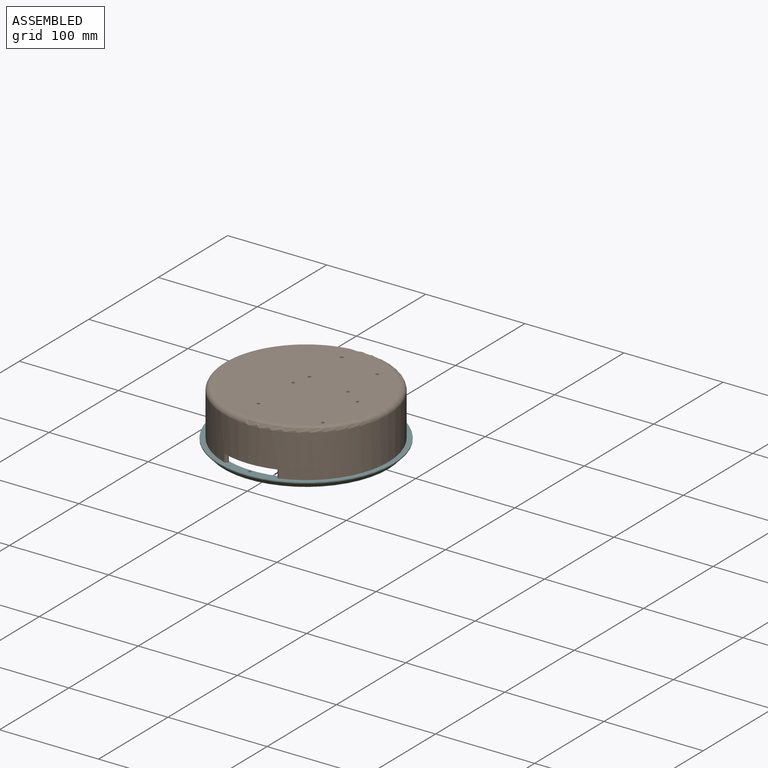
[diagram: assembled view]
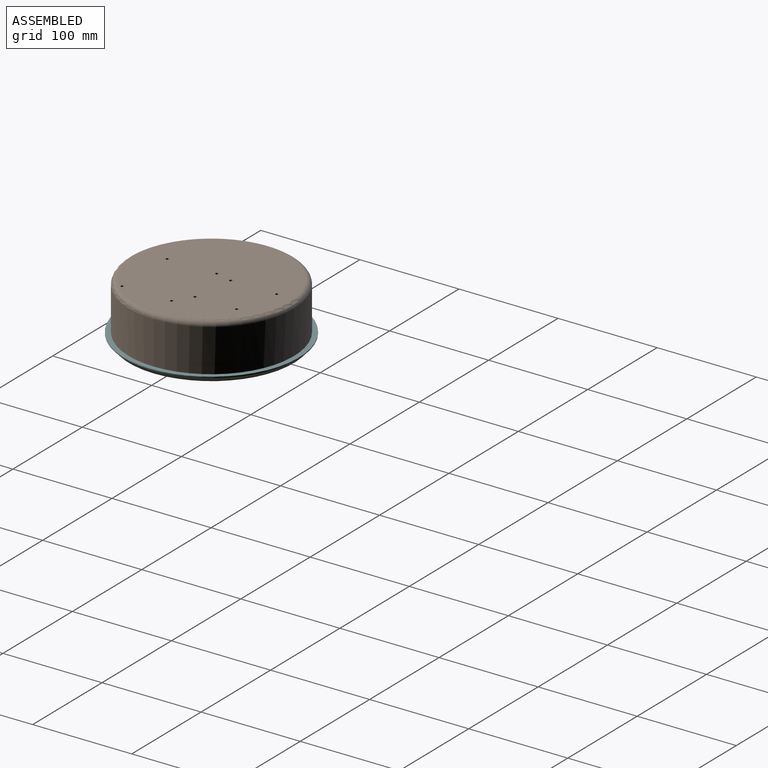
[diagram: assembled view, second angle]
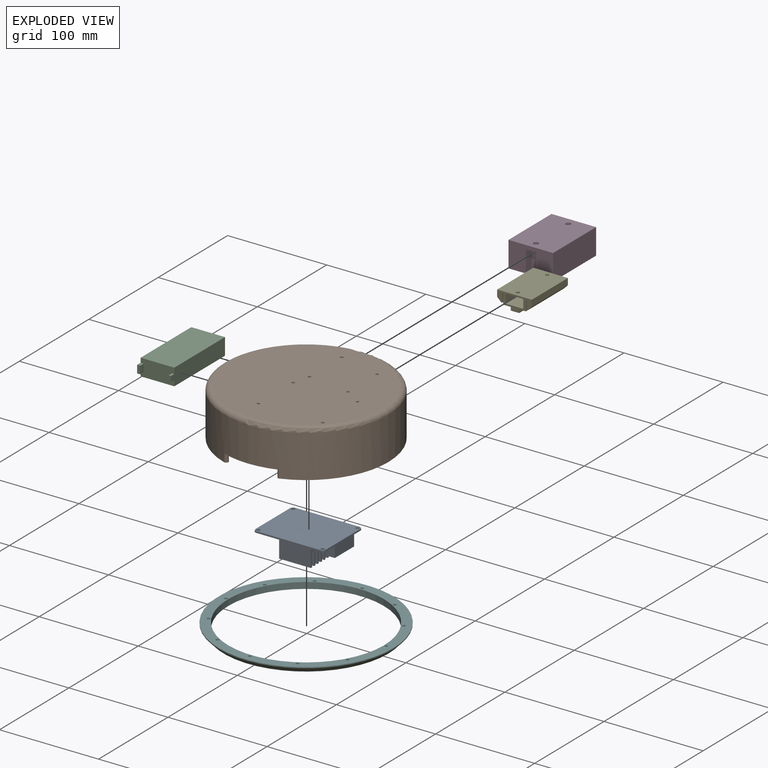
[diagram: exploded view]
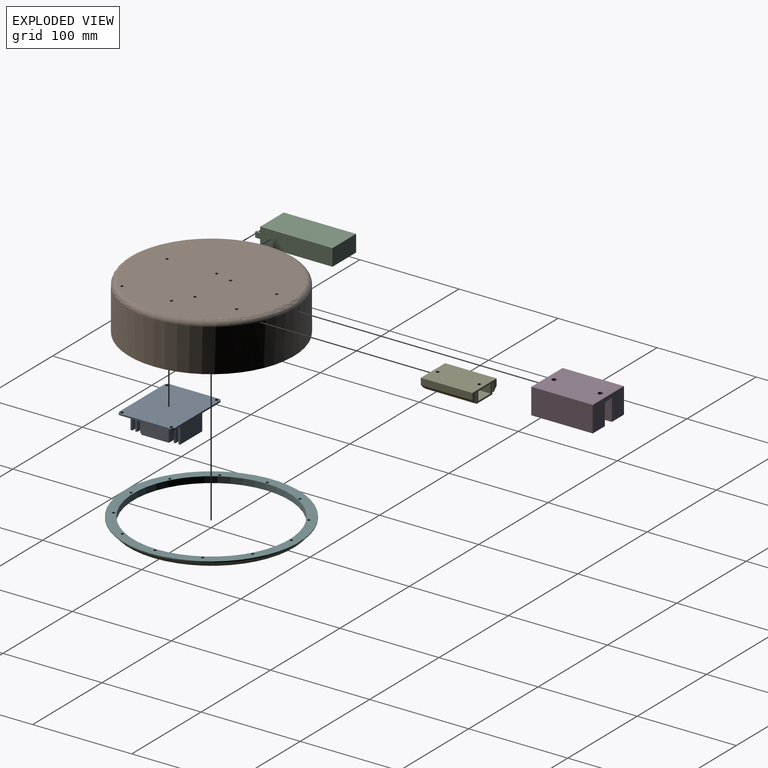
[diagram: exploded view, second angle]
ASSEMBLY  parts=6 mates=5
PART A: 69 faces, bbox 71x56x20.6 mm
  f0: plane 71x56mm, normal (0,0,-1), area 2002.9mm2, adj f11,f12,f13,f14,f15,f16,f17,f18
  f1: plane 32x1.83mm, normal (0,0,-1), area 58.6mm2, adj f29,f31,f59,f61
  f2: plane 32x1.83mm, normal (0,0,-1), area 58.6mm2, adj f29,f31,f56,f58
  f3: plane 32x1.83mm, normal (0,0,-1), area 58.6mm2, adj f29,f31,f53,f55
  f4: plane 32x1.83mm, normal (0,0,-1), area 58.6mm2, adj f29,f31,f50,f52
  f5: plane 32x1.83mm, normal (0,0,-1), area 58.6mm2, adj f29,f31,f47,f49
  f6: plane 32x1.83mm, normal (0,0,-1), area 58.6mm2, adj f29,f31,f44,f46
  f7: plane 32x1.83mm, normal (0,0,-1), area 58.6mm2, adj f29,f31,f41,f43
  f8: plane 32x1.83mm, normal (0,0,-1), area 58.6mm2, adj f29,f31,f38,f40
  f9: plane 32x1.83mm, normal (0,0,-1), area 58.6mm2, adj f29,f31,f35,f37
  f10: plane 32x1.76mm, normal (0,0,-1), area 56.4mm2, adj f29,f30,f31,f34
  f11: plane 50x1.6mm, normal (-1,0,0), area 80mm2, adj f0,f12,f22,f23
  f12: cylinder r=3mm len=3mm, axis (0,0,1), area 7.5mm2, adj f0,f11,f13,f23
  f13: plane 65x1.6mm, normal (0,1,0), area 104mm2, adj f0,f12,f14,f23
  f14: cylinder r=3mm len=3mm, axis (0,0,1), area 7.5mm2, adj f0,f13,f15,f23
  f15: plane 50x1.6mm, normal (1,0,0), area 80mm2, adj f0,f14,f16,f23
  f16: cylinder r=3mm len=3mm, axis (0,0,1), area 7.5mm2, adj f0,f15,f17,f23
  f17: plane 65x1.6mm, normal (0,-1,0), area 104mm2, adj f0,f16,f22,f23
  f18: cylinder r=1.75mm len=3.5mm, axis (0,0,1), area 17.6mm2, adj f0,f23
  f19: cylinder r=1.75mm len=3.5mm, axis (0,0,1), area 17.6mm2, adj f0,f23
  f20: cylinder r=1.75mm len=3.5mm, axis (0,0,1), area 17.6mm2, adj f0,f23
  f21: cylinder r=1.75mm len=3.5mm, axis (0,0,1), area 17.6mm2, adj f0,f23
  f22: cylinder r=3mm len=3mm, axis (0,0,1), area 7.5mm2, adj f0,f11,f17,f23
  f23: plane 71x56mm, normal (0,0,1), area 3929.8mm2, adj f11,f12,f13,f14,f15,f16,f17,f18
  f24: plane 15.03x8mm, normal (-1,0,0), area 120.2mm2, adj f0,f25,f27,f28
  f25: plane 8x5.84mm, normal (0,1,0), area 46.7mm2, adj f0,f24,f26,f28
  f26: plane 15.03x8mm, normal (1,0,0), area 120.2mm2, adj f0,f25,f27,f28
  f27: plane 8x5.84mm, normal (0,-1,0), area 46.7mm2, adj f0,f24,f26,f28
  f28: plane 15.03x5.84mm, normal (0,0,-1), area 87.8mm2, adj f24,f25,f26,f27
  f29: plane 50x19mm, normal (-1,0,0), area 530mm2, adj f0,f1,f2,f3,f4,f5,f6,f7
  f30: plane 32x19mm, normal (0,1,0), area 608mm2, adj f0,f10,f29,f31
  f31: plane 50x19mm, normal (1,0,0), area 530mm2, adj f0,f1,f2,f3,f4,f5,f6,f7
  f32: plane 32x19mm, normal (0,-1,0), area 608mm2, adj f0,f29,f31,f33
  f33: plane 32x1.76mm, normal (0,0,-1), area 56.4mm2, adj f29,f31,f32,f62
  f34: plane 32x14mm, normal (0,-1,0), area 448mm2, adj f10,f29,f31,f36
  f35: plane 32x14mm, normal (0,1,0), area 448mm2, adj f9,f29,f31,f36
  f36: plane 32x3mm, normal (0,0,-1), area 96mm2, adj f29,f31,f34,f35
  f37: plane 32x14mm, normal (0,-1,0), area 448mm2, adj f9,f29,f31,f39
  f38: plane 32x14mm, normal (0,1,0), area 448mm2, adj f8,f29,f31,f39
  f39: plane 32x3mm, normal (0,0,-1), area 96mm2, adj f29,f31,f37,f38
  f40: plane 32x14mm, normal (0,-1,0), area 448mm2, adj f8,f29,f31,f42
  f41: plane 32x14mm, normal (0,1,0), area 448mm2, adj f7,f29,f31,f42
  f42: plane 32x3mm, normal (0,0,-1), area 96mm2, adj f29,f31,f40,f41
  f43: plane 32x14mm, normal (0,-1,0), area 448mm2, adj f7,f29,f31,f45
  f44: plane 32x14mm, normal (0,1,0), area 448mm2, adj f6,f29,f31,f45
  f45: plane 32x3mm, normal (0,0,-1), area 96mm2, adj f29,f31,f43,f44
  f46: plane 32x14mm, normal (0,-1,0), area 448mm2, adj f6,f29,f31,f48
  f47: plane 32x14mm, normal (0,1,0), area 448mm2, adj f5,f29,f31,f48
  f48: plane 32x3mm, normal (0,0,-1), area 96mm2, adj f29,f31,f46,f47
  f49: plane 32x14mm, normal (0,-1,0), area 448mm2, adj f5,f29,f31,f51
  f50: plane 32x14mm, normal (0,1,0), area 448mm2, adj f4,f29,f31,f51
  f51: plane 32x3mm, normal (0,0,-1), area 96mm2, adj f29,f31,f49,f50
  f52: plane 32x14mm, normal (0,-1,0), area 448mm2, adj f4,f29,f31,f54
  f53: plane 32x14mm, normal (0,1,0), area 448mm2, adj f3,f29,f31,f54
  f54: plane 32x3mm, normal (0,0,-1), area 96mm2, adj f29,f31,f52,f53
  f55: plane 32x14mm, normal (0,-1,0), area 448mm2, adj f3,f29,f31,f57
  f56: plane 32x14mm, normal (0,1,0), area 448mm2, adj f2,f29,f31,f57
  f57: plane 32x3mm, normal (0,0,-1), area 96mm2, adj f29,f31,f55,f56
  f58: plane 32x14mm, normal (0,-1,0), area 448mm2, adj f2,f29,f31,f60
  f59: plane 32x14mm, normal (0,1,0), area 448mm2, adj f1,f29,f31,f60
  f60: plane 32x3mm, normal (0,0,-1), area 96mm2, adj f29,f31,f58,f59
  f61: plane 32x14mm, normal (0,-1,0), area 448mm2, adj f1,f29,f31,f63
  f62: plane 32x14mm, normal (0,1,0), area 448mm2, adj f29,f31,f33,f63
  f63: plane 32x3mm, normal (0,0,-1), area 96mm2, adj f29,f31,f61,f62
  f64: plane 27.79x14mm, normal (-1,0,0), area 389.1mm2, adj f0,f65,f67,f68
  f65: plane 14x8.6mm, normal (0,1,0), area 120.4mm2, adj f0,f64,f66,f68
  f66: plane 27.79x14mm, normal (1,0,0), area 389.1mm2, adj f0,f65,f67,f68
  f67: plane 14x8.6mm, normal (0,-1,0), area 120.4mm2, adj f0,f64,f66,f68
  f68: plane 27.79x8.6mm, normal (0,0,-1), area 239.1mm2, adj f64,f65,f66,f67
PART B: 57 faces, bbox 180.1x180.1x48 mm
  f0: plane 157.33x157.33mm, normal (0,0,-1), area 19100.6mm2, adj f1,f32,f33,f34,f35,f36,f37,f38
  f1: cylinder r=78.67mm len=157.33mm, axis (0,0,-1), area 21725.2mm2, adj f0,f2,f16,f40,f41,f45,f53,f54
  f2: plane 166.38x161.65mm, normal (0,0,-1), area 1986.4mm2, adj f1,f4,f5,f6,f7,f8,f9,f10
  f3: cylinder r=1.5mm len=37mm, axis (0,0,-1), area 348.7mm2, adj f16,f24
  f4: cylinder r=83.19mm len=166.38mm, axis (0,0,1), area 22018.4mm2, adj f2,f16,f52,f55,f56
  f5: cylinder r=1.5mm len=45mm, axis (0,0,-1), area 424.1mm2, adj f2,f19
  f6: cylinder r=1.5mm len=45mm, axis (0,0,-1), area 424.1mm2, adj f2,f20
  f7: cylinder r=1.5mm len=45mm, axis (0,0,-1), area 424.1mm2, adj f2,f21
  f8: cylinder r=1.5mm len=45mm, axis (0,0,-1), area 424.1mm2, adj f2,f22
  f9: cylinder r=1.5mm len=45mm, axis (0,0,-1), area 424.1mm2, adj f2,f23
  f10: cylinder r=1.5mm len=45mm, axis (0,0,-1), area 424.1mm2, adj f2,f25
  f11: cylinder r=1.5mm len=45mm, axis (0,0,-1), area 424.1mm2, adj f2,f26
  f12: cylinder r=1.5mm len=45mm, axis (0,0,-1), area 424.1mm2, adj f2,f27
  f13: cylinder r=1.5mm len=45mm, axis (0,0,-1), area 424.1mm2, adj f2,f28
  f14: cylinder r=1.5mm len=45mm, axis (0,0,-1), area 424.1mm2, adj f2,f29
  f15: cylinder r=1.5mm len=45mm, axis (0,0,-1), area 424.1mm2, adj f2,f30
  f16: plane 56.02x9.12mm, normal (0,0,-1), area 228.3mm2, adj f1,f3,f4,f17,f18,f53,f54,f55
  f17: plane 8x0.02mm, normal (-1,0,0), area 0.2mm2, adj f2,f16,f53,f55
  f18: plane 8x0.02mm, normal (1,0,0), area 0.2mm2, adj f2,f16,f54,f56
  f19: plane 3x3mm, normal (0,0,-1), area 7.1mm2, adj f5
  f20: plane 3x3mm, normal (0,0,-1), area 7.1mm2, adj f6
  f21: plane 3x3mm, normal (0,0,-1), area 7.1mm2, adj f7
  f22: plane 3x3mm, normal (0,0,-1), area 7.1mm2, adj f8
  f23: plane 3x3mm, normal (0,0,-1), area 7.1mm2, adj f9
  f24: plane 3x3mm, normal (0,0,-1), area 7.1mm2, adj f3
  f25: plane 3x3mm, normal (0,0,-1), area 7.1mm2, adj f10
  f26: plane 3x3mm, normal (0,0,-1), area 7.1mm2, adj f11
  f27: plane 3x3mm, normal (0,0,-1), area 7.1mm2, adj f12
  f28: plane 3x3mm, normal (0,0,-1), area 7.1mm2, adj f13
  f29: plane 3x3mm, normal (0,0,-1), area 7.1mm2, adj f14
  f30: plane 3x3mm, normal (0,0,-1), area 7.1mm2, adj f15
  f31: plane 156.38x156.38mm, normal (0,0,1), area 19149.1mm2, adj f32,f33,f34,f35,f36,f37,f38,f39
  f32: cylinder r=1.5mm len=3mm, axis (0,0,-1), area 28.3mm2, adj f0,f31
  f33: cylinder r=1.5mm len=3mm, axis (0,0,-1), area 28.3mm2, adj f0,f31
  f34: cylinder r=1.5mm len=3mm, axis (0,0,-1), area 28.3mm2, adj f0,f31
  f35: cylinder r=1.5mm len=3mm, axis (0,0,-1), area 28.3mm2, adj f0,f31
  f36: cylinder r=1.5mm len=3mm, axis (0,0,-1), area 28.3mm2, adj f0,f31
  f37: cylinder r=1.5mm len=3mm, axis (0,0,-1), area 28.3mm2, adj f0,f31
  f38: cylinder r=1.5mm len=3mm, axis (0,0,-1), area 28.3mm2, adj f0,f31
  f39: cylinder r=1.5mm len=3mm, axis (0,0,-1), area 28.3mm2, adj f0,f31
  f40: plane 75.2x36.2mm, normal (0,0,-1), area 214.1mm2, adj f1,f41,f42,f43,f44,f45,f46
  f41: plane 33.67x18.56mm, normal (0,1,0), area 624.8mm2, adj f0,f1,f40,f42
  f42: plane 18.56x2mm, normal (1,0,0), area 37.1mm2, adj f0,f40,f41,f43
  f43: plane 34.2x18.56mm, normal (0,-1,0), area 634.6mm2, adj f0,f40,f42,f44
  f44: plane 73.2x18.56mm, normal (1,0,0), area 1358.3mm2, adj f0,f40,f43,f46
  f45: plane 71.41x18.56mm, normal (-1,0,0), area 1325.1mm2, adj f0,f1,f40,f46
  f46: plane 18.56x2mm, normal (0,-1,0), area 37.1mm2, adj f0,f40,f44,f45
  f47: plane 34.9x2mm, normal (0,0,-1), area 69.8mm2, adj f48,f49,f50,f51
  f48: plane 18.56x2mm, normal (0,-1,0), area 37.1mm2, adj f0,f47,f49,f50
  f49: plane 34.9x18.56mm, normal (-1,0,0), area 647.6mm2, adj f0,f47,f48,f51
  f50: plane 34.9x18.56mm, normal (1,0,0), area 647.6mm2, adj f0,f47,f48,f51
  f51: plane 18.56x2mm, normal (0,1,0), area 37.1mm2, adj f0,f47,f49,f50
  f52: torus R=78.19mm, axis (0,0,1), area 4015.5mm2, adj f4,f31
  f53: cylinder r=2.25mm len=8mm, axis (0,0,-1), area 22.1mm2, adj f1,f2,f16,f17
  f54: cylinder r=2.25mm len=8mm, axis (0,0,-1), area 22.1mm2, adj f1,f2,f16,f18
  f55: cylinder r=2.25mm len=8mm, axis (0,0,1), area 34.5mm2, adj f2,f4,f16,f17
  f56: cylinder r=2.25mm len=8mm, axis (0,0,1), area 34.5mm2, adj f2,f4,f16,f18
PART C: 14 faces, bbox 34x78x17 mm
  f0: plane 78x17mm, normal (-1,0,0), area 1280.7mm2, adj f1,f3,f4,f5,f7,f8,f9
  f1: plane 34x17mm, normal (0,-1,0), area 540.4mm2, adj f0,f2,f4,f5,f6,f7,f8,f10
  f2: plane 78x17mm, normal (1,0,0), area 1268.3mm2, adj f1,f3,f4,f5,f10,f12,f13
  f3: plane 34x17mm, normal (0,1,0), area 578mm2, adj f0,f2,f4,f5
  f4: plane 73x34mm, normal (0,0,1), area 2482mm2, adj f0,f1,f2,f3
  f5: plane 73x34mm, normal (0,0,-1), area 2482mm2, adj f0,f1,f2,f3
  f6: plane 7.94x5mm, normal (1,0,0), area 39.7mm2, adj f1,f7,f8,f9
  f7: plane 5x3.14mm, normal (0,0,1), area 15.7mm2, adj f0,f1,f6,f9
  f8: plane 5x3.14mm, normal (0,0,-1), area 15.7mm2, adj f0,f1,f6,f9
  f9: plane 7.94x3.14mm, normal (0,-1,0), area 25mm2, adj f0,f6,f7,f8
  f10: plane 5x2.32mm, normal (0,0,1), area 11.6mm2, adj f1,f2,f11,f13
  f11: plane 5.46x5mm, normal (-1,0,0), area 27.3mm2, adj f1,f10,f12,f13
  f12: plane 5x2.32mm, normal (0,0,-1), area 11.6mm2, adj f1,f2,f11,f13
  f13: plane 5.46x2.32mm, normal (0,-1,0), area 12.6mm2, adj f2,f10,f11,f12
PART D: 16 faces, bbox 45x62x26 mm
  f0: plane 12.5x10mm, normal (0,0,-1), area 94.6mm2, adj f1,f6,f12,f13,f14
  f1: plane 45x26mm, normal (0,-1,0), area 950mm2, adj f0,f2,f5,f8,f12,f14,f15
  f2: plane 62x26mm, normal (-1,0,0), area 1612mm2, adj f1,f3,f8,f15
  f3: plane 45x26mm, normal (0,1,0), area 950mm2, adj f2,f5,f7,f8,f9,f11,f15
  f4: cylinder r=2.5mm len=5mm, axis (0,0,1), area 62.8mm2, adj f7,f8
  f5: plane 62x26mm, normal (1,0,0), area 1612mm2, adj f1,f3,f8,f15
  f6: cylinder r=2.5mm len=5mm, axis (0,0,1), area 62.8mm2, adj f0,f8
  f7: plane 13x10mm, normal (0,0,-1), area 99.6mm2, adj f3,f4,f9,f10,f11
  f8: plane 62x45mm, normal (0,0,1), area 2750.7mm2, adj f1,f2,f3,f4,f5,f6
  f9: plane 22x8mm, normal (1,0,0), area 176mm2, adj f3,f7,f10,f15
  f10: cylinder r=5mm len=22mm, axis (0,0,1), area 345.6mm2, adj f7,f9,f11,f15
  f11: plane 22x8mm, normal (-1,0,0), area 176mm2, adj f3,f7,f10,f15
  f12: plane 22x7.5mm, normal (-1,0,0), area 165mm2, adj f0,f1,f13,f15
  f13: cylinder r=5mm len=22mm, axis (0,0,1), area 345.6mm2, adj f0,f12,f14,f15
  f14: plane 22x7.5mm, normal (1,0,0), area 165mm2, adj f0,f1,f13,f15
  f15: plane 62x45mm, normal (0,0,-1), area 2556.5mm2, adj f1,f2,f3,f5,f9,f10,f11,f12
PART E: 26 faces, bbox 35x52x15.6 mm
  f0: plane 52x22.86mm, normal (0,0,-1), area 1104.1mm2, adj f5,f9,f16,f18,f22,f24,f25
  f1: plane 52x1.07mm, normal (0,0,-1), area 55.6mm2, adj f5,f9,f16,f19
  f2: plane 52x17.78mm, normal (0,0,-1), area 905.3mm2, adj f5,f7,f8,f9,f15,f17
  f3: plane 52x1.07mm, normal (0,0,-1), area 55.6mm2, adj f5,f9,f13,f18
  f4: plane 52x6.6mm, normal (1,0,0), area 343.2mm2, adj f5,f9,f10,f12
  f5: plane 35x15.55mm, normal (0,-1,0), area 240.7mm2, adj f0,f1,f2,f3,f4,f6,f10,f11
  f6: plane 52x6.6mm, normal (-1,0,0), area 343.2mm2, adj f5,f9,f10,f21
  f7: cylinder r=1.75mm len=3.5mm, axis (0,0,1), area 17.6mm2, adj f2,f10
  f8: cylinder r=1.75mm len=3.5mm, axis (0,0,1), area 17.6mm2, adj f2,f10
  f9: plane 35x12.2mm, normal (0,1,0), area 212.3mm2, adj f0,f1,f2,f3,f4,f6,f10,f11
  f10: plane 52x35mm, normal (0,0,1), area 1800.8mm2, adj f4,f5,f6,f7,f8,f9
  f11: plane 52x1mm, normal (0,0,-1), area 52mm2, adj f5,f9,f12,f13
  f12: plane 52x4mm, normal (0.71,0,-0.71), area 294.2mm2, adj f4,f5,f9,f11
  f13: plane 52x9mm, normal (-1,0,0), area 468mm2, adj f3,f5,f9,f11
  f14: plane 52x17.78mm, normal (0,0,1), area 924.6mm2, adj f5,f9,f15,f17
  f15: plane 52x9mm, normal (1,0,0), area 468mm2, adj f2,f5,f9,f14
  f16: plane 52x10.6mm, normal (-1,0,0), area 551.2mm2, adj f0,f1,f5,f9
  f17: plane 52x9mm, normal (-1,0,0), area 468mm2, adj f2,f5,f9,f14
  f18: plane 52x10.6mm, normal (1,0,0), area 551.2mm2, adj f0,f3,f5,f9
  f19: plane 52x9mm, normal (1,0,0), area 468mm2, adj f1,f5,f9,f20
  f20: plane 52x1mm, normal (0,0,-1), area 52mm2, adj f5,f9,f19,f21
  f21: plane 52x4mm, normal (-0.71,0,-0.71), area 294.2mm2, adj f5,f6,f9,f20
  f22: plane 10x3.35mm, normal (-1,0,0), area 33.5mm2, adj f0,f5,f23,f25
  f23: plane 10x8.47mm, normal (0,0,-1), area 84.7mm2, adj f5,f22,f24,f25
  f24: plane 10x3.35mm, normal (1,0,0), area 33.5mm2, adj f0,f5,f23,f25
  f25: plane 8.47x3.35mm, normal (0,1,0), area 28.4mm2, adj f0,f22,f23,f24
PART F: 18 faces, bbox 180.8x180.8x6.8 mm
  f0: plane 166.53x166.53mm, normal (0,0,-1), area 2255.3mm2, adj f1,f5,f6,f7,f8,f9,f10,f11
  f1: torus R=84.07mm, axis (0,0,1), area 332mm2, adj f0,f2
  f2: cone r=83.5mm half-angle=45deg, axis (0,0,1), area 3574.4mm2, adj f1,f3
  f3: cylinder r=88.19mm len=176.38mm, axis (0,0,1), area 554.1mm2, adj f2,f4
  f4: plane 176.38x176.38mm, normal (0,0,1), area 4906.6mm2, adj f3,f5,f6,f7,f8,f9,f10,f11
  f5: cylinder r=78.67mm len=157.33mm, axis (0,0,1), area 3092.5mm2, adj f0,f4
  f6: cylinder r=1.5mm len=6.26mm, axis (0,0,-1), area 59mm2, adj f0,f4
  f7: cylinder r=1.5mm len=6.26mm, axis (0,0,-1), area 59mm2, adj f0,f4
  f8: cylinder r=1.5mm len=6.26mm, axis (0,0,-1), area 59mm2, adj f0,f4
  f9: cylinder r=1.5mm len=6.26mm, axis (0,0,-1), area 59mm2, adj f0,f4
  f10: cylinder r=1.5mm len=6.26mm, axis (0,0,-1), area 59mm2, adj f0,f4
  f11: cylinder r=1.5mm len=6.26mm, axis (0,0,-1), area 59mm2, adj f0,f4
  f12: cylinder r=1.5mm len=6.26mm, axis (0,0,-1), area 59mm2, adj f0,f4
  f13: cylinder r=1.5mm len=6.26mm, axis (0,0,-1), area 59mm2, adj f0,f4
  f14: cylinder r=1.5mm len=6.26mm, axis (0,0,-1), area 59mm2, adj f0,f4
  f15: cylinder r=1.5mm len=6.26mm, axis (0,0,-1), area 59mm2, adj f0,f4
  f16: cylinder r=1.5mm len=6.26mm, axis (0,0,-1), area 59mm2, adj f0,f4
  f17: cylinder r=1.5mm len=6.26mm, axis (0,0,-1), area 59mm2, adj f0,f4
PLACE A t=(-0.61,-0.02,4.62)mm
PLACE B t=(-0.61,-0.02,-16.63)mm fixed
PLACE C t=(-0.81,0.18,-15.08)mm
PLACE D t=(-0.61,-0.02,4.22)mm
PLACE E t=(-0.61,-0.02,3.82)mm
PLACE F t=(-0.61,-0.02,-16.63)mm
MATE fastened B.f0 <-> C.f4  axis (0,0,-1) through (-65.31,43.48,34.62)mm
MATE fastened B.f38 <-> A.f14  axis (0,0,-1) through (52.99,-2.52,34.62)mm
MATE fastened B.f34 <-> D.f13  axis (0,0,-1) through (-7.51,14.68,34.62)mm
MATE fastened B.f12 <-> F.f14  axis (0,0,-1) through (-0.61,80.94,-10.38)mm
MATE fastened B.f39 <-> E.f8  axis (0,0,-1) through (35.49,8.88,34.62)mm
